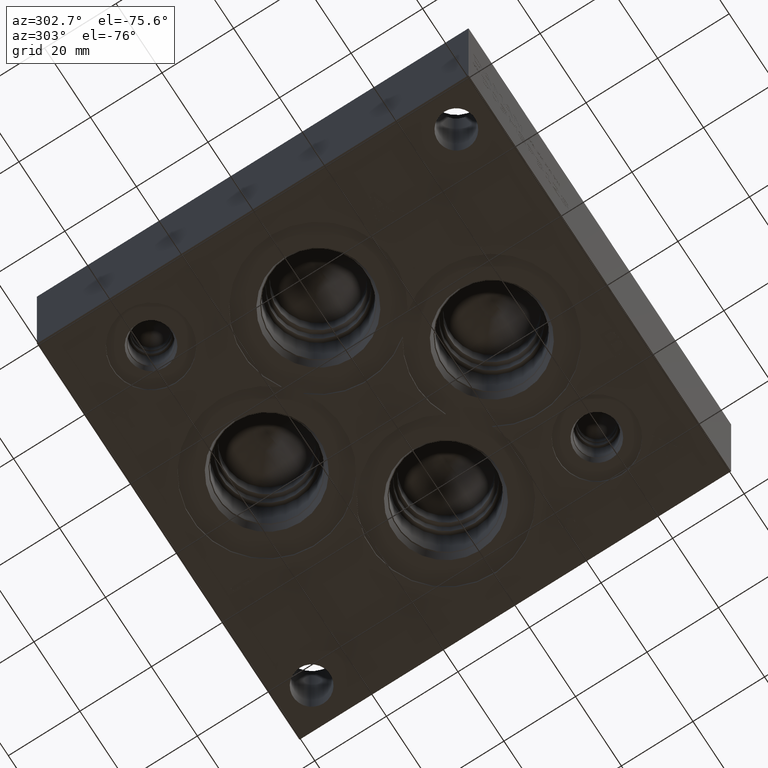
[diagram: clean part render]
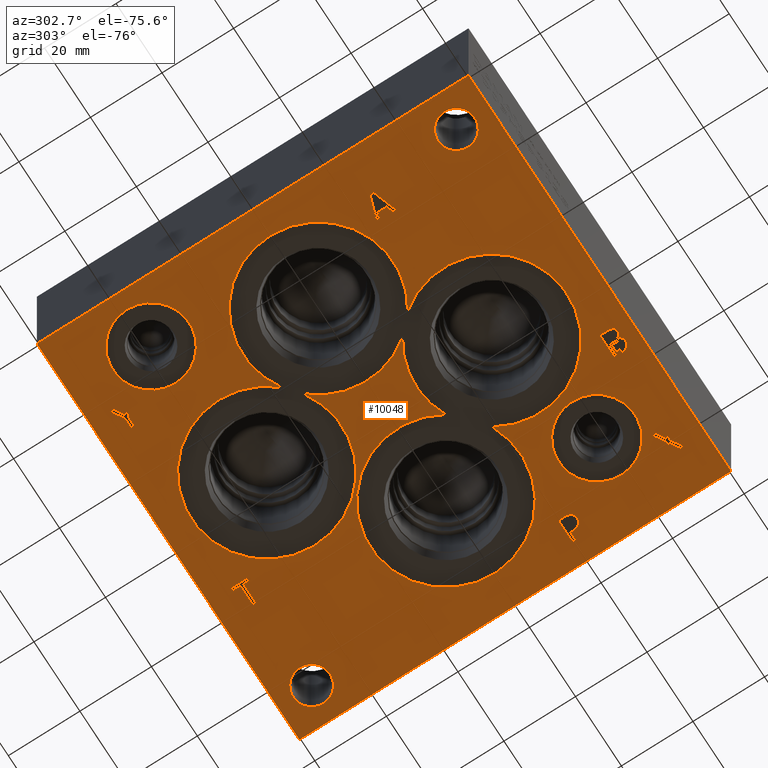
[diagram: same view with one face highlighted and labeled with its STEP entity id]
A machine part, auxiliary view. The second image highlights one B-rep face of the part: STEP entity #10048.
In plain terms, the highlighted planar face has unit normal (0, 0, 1).
Its self-contained STEP definition (entity closure, byte-faithful):
#96=CIRCLE('',#10585,10.6426);
#97=CIRCLE('',#10586,10.6426);
#98=CIRCLE('',#10587,10.6426);
#99=CIRCLE('',#10588,10.6426);
#100=CIRCLE('',#10589,5.1562);
#101=CIRCLE('',#10590,5.1562);
#102=CIRCLE('',#10591,21.0185);
#103=CIRCLE('',#10592,21.0185);
#104=CIRCLE('',#10593,21.0185);
#105=CIRCLE('',#10594,21.0185);
#106=CIRCLE('',#10595,21.0185);
#107=CIRCLE('',#10596,21.0185);
#268=FACE_BOUND('',#1322,.T.);
#269=FACE_BOUND('',#1323,.T.);
#270=FACE_BOUND('',#1324,.T.);
#271=FACE_BOUND('',#1325,.T.);
#272=FACE_BOUND('',#1326,.T.);
#273=FACE_BOUND('',#1327,.T.);
#274=FACE_BOUND('',#1328,.T.);
#275=FACE_BOUND('',#1329,.T.);
#276=FACE_BOUND('',#1330,.T.);
#277=FACE_BOUND('',#1331,.T.);
#278=FACE_BOUND('',#1332,.T.);
#355=B_SPLINE_CURVE_WITH_KNOTS('',2,(#13671,#13672,#13673,#13674),
 .UNSPECIFIED.,.F.,.F.,(3,1,3),(0.,1.,2.),.UNSPECIFIED.);
#357=B_SPLINE_CURVE_WITH_KNOTS('',2,(#13698,#13699,#13700,#13701),
 .UNSPECIFIED.,.F.,.F.,(3,1,3),(0.,1.,2.),.UNSPECIFIED.);
#359=B_SPLINE_CURVE_WITH_KNOTS('',2,(#13717,#13718,#13719,#13720),
 .UNSPECIFIED.,.F.,.F.,(3,1,3),(0.,1.,2.),.UNSPECIFIED.);
#361=B_SPLINE_CURVE_WITH_KNOTS('',2,(#13736,#13737,#13738,#13739),
 .UNSPECIFIED.,.F.,.F.,(3,1,3),(0.,1.,2.),.UNSPECIFIED.);
#363=B_SPLINE_CURVE_WITH_KNOTS('',2,(#13773,#13774,#13775,#13776),
 .UNSPECIFIED.,.F.,.F.,(3,1,3),(0.,1.,2.),.UNSPECIFIED.);
#365=B_SPLINE_CURVE_WITH_KNOTS('',2,(#13791,#13792,#13793,#13794),
 .UNSPECIFIED.,.F.,.F.,(3,1,3),(0.,1.,2.),.UNSPECIFIED.);
#367=B_SPLINE_CURVE_WITH_KNOTS('',2,(#13851,#13852,#13853,#13854),
 .UNSPECIFIED.,.F.,.F.,(3,1,3),(0.,1.,2.),.UNSPECIFIED.);
#368=B_SPLINE_CURVE_WITH_KNOTS('',2,(#13856,#13857,#13858,#13859),
 .UNSPECIFIED.,.F.,.F.,(3,1,3),(0.,1.,2.),.UNSPECIFIED.);
#369=B_SPLINE_CURVE_WITH_KNOTS('',2,(#13861,#13862,#13863,#13864),
 .UNSPECIFIED.,.F.,.F.,(3,1,3),(0.,1.,2.),.UNSPECIFIED.);
#370=B_SPLINE_CURVE_WITH_KNOTS('',2,(#13875,#13876,#13877,#13878),
 .UNSPECIFIED.,.F.,.F.,(3,1,3),(0.,1.,2.),.UNSPECIFIED.);
#783=FACE_OUTER_BOUND('',#1321,.T.);
#1321=EDGE_LOOP('',(#6611,#6612,#6613,#6614));
#1322=EDGE_LOOP('',(#6615,#6616,#6617,#6618,#6619,#6620,#6621,#6622,#6623,
#6624,#6625,#6626));
#1323=EDGE_LOOP('',(#6627,#6628,#6629,#6630,#6631,#6632,#6633,#6634,#6635));
#1324=EDGE_LOOP('',(#6636,#6637,#6638,#6639,#6640,#6641,#6642,#6643));
#1325=EDGE_LOOP('',(#6644,#6645,#6646,#6647,#6648,#6649,#6650,#6651,#6652,
#6653));
#1326=EDGE_LOOP('',(#6654,#6655,#6656,#6657,#6658,#6659,#6660,#6661));
#1327=EDGE_LOOP('',(#6662,#6663));
#1328=EDGE_LOOP('',(#6664,#6665));
#1329=EDGE_LOOP('',(#6666));
#1330=EDGE_LOOP('',(#6667));
#1331=EDGE_LOOP('',(#6668,#6669,#6670,#6671,#6672,#6673));
#1332=EDGE_LOOP('',(#6674,#6675,#6676,#6677,#6678,#6679,#6680,#6681,#6682));
#1871=LINE('',#13299,#2892);
#1875=LINE('',#13307,#2896);
#1878=LINE('',#13313,#2899);
#1881=LINE('',#13319,#2902);
#1884=LINE('',#13325,#2905);
#1887=LINE('',#13331,#2908);
#1890=LINE('',#13337,#2911);
#1893=LINE('',#13343,#2914);
#1896=LINE('',#13349,#2917);
#1899=LINE('',#13355,#2920);
#1902=LINE('',#13361,#2923);
#1905=LINE('',#13366,#2926);
#1907=LINE('',#13372,#2928);
#1911=LINE('',#13380,#2932);
#1914=LINE('',#13386,#2935);
#1917=LINE('',#13392,#2938);
#1920=LINE('',#13398,#2941);
#1923=LINE('',#13404,#2944);
#1926=LINE('',#13410,#2947);
#1929=LINE('',#13416,#2950);
#1932=LINE('',#13421,#2953);
#1934=LINE('',#13427,#2955);
#1938=LINE('',#13435,#2959);
#1941=LINE('',#13441,#2962);
#1944=LINE('',#13447,#2965);
#1947=LINE('',#13453,#2968);
#1950=LINE('',#13459,#2971);
#1953=LINE('',#13465,#2974);
#1956=LINE('',#13470,#2977);
#1986=LINE('',#13685,#3007);
#1992=LINE('',#13748,#3013);
#1995=LINE('',#13754,#3016);
#1998=LINE('',#13760,#3019);
#2002=LINE('',#13803,#3023);
#2003=LINE('',#13805,#3024);
#2004=LINE('',#13807,#3025);
#2005=LINE('',#13808,#3026);
#2006=LINE('',#13811,#3027);
#2007=LINE('',#13813,#3028);
#2008=LINE('',#13815,#3029);
#2009=LINE('',#13817,#3030);
#2010=LINE('',#13819,#3031);
#2011=LINE('',#13821,#3032);
#2012=LINE('',#13823,#3033);
#2013=LINE('',#13824,#3034);
#2014=LINE('',#13866,#3035);
#2015=LINE('',#13868,#3036);
#2016=LINE('',#13870,#3037);
#2017=LINE('',#13872,#3038);
#2018=LINE('',#13874,#3039);
#2892=VECTOR('',#11122,10.);
#2896=VECTOR('',#11128,10.);
#2899=VECTOR('',#11133,10.);
#2902=VECTOR('',#11138,10.);
#2905=VECTOR('',#11143,10.);
#2908=VECTOR('',#11148,10.);
#2911=VECTOR('',#11153,10.);
#2914=VECTOR('',#11158,10.);
#2917=VECTOR('',#11163,10.);
#2920=VECTOR('',#11168,10.);
#2923=VECTOR('',#11173,10.);
#2926=VECTOR('',#11178,10.);
#2928=VECTOR('',#11184,10.);
#2932=VECTOR('',#11190,10.);
#2935=VECTOR('',#11195,10.);
#2938=VECTOR('',#11200,10.);
#2941=VECTOR('',#11205,10.);
#2944=VECTOR('',#11210,10.);
#2947=VECTOR('',#11215,10.);
#2950=VECTOR('',#11220,10.);
#2953=VECTOR('',#11225,10.);
#2955=VECTOR('',#11231,10.);
#2959=VECTOR('',#11237,10.);
#2962=VECTOR('',#11242,10.);
#2965=VECTOR('',#11247,10.);
#2968=VECTOR('',#11252,10.);
#2971=VECTOR('',#11257,10.);
#2974=VECTOR('',#11262,10.);
#2977=VECTOR('',#11267,10.);
#3007=VECTOR('',#11313,10.);
#3013=VECTOR('',#11321,10.);
#3016=VECTOR('',#11326,10.);
#3019=VECTOR('',#11331,10.);
#3023=VECTOR('',#11339,10.);
#3024=VECTOR('',#11340,10.);
#3025=VECTOR('',#11341,10.);
#3026=VECTOR('',#11342,10.);
#3027=VECTOR('',#11343,10.);
#3028=VECTOR('',#11344,10.);
#3029=VECTOR('',#11345,10.);
#3030=VECTOR('',#11346,10.);
#3031=VECTOR('',#11347,10.);
#3032=VECTOR('',#11348,10.);
#3033=VECTOR('',#11349,10.);
#3034=VECTOR('',#11350,10.);
#3035=VECTOR('',#11375,10.);
#3036=VECTOR('',#11376,10.);
#3037=VECTOR('',#11377,10.);
#3038=VECTOR('',#11378,10.);
#3039=VECTOR('',#11379,10.);
#3913=VERTEX_POINT('',#13297);
#3914=VERTEX_POINT('',#13298);
#3917=VERTEX_POINT('',#13306);
#3919=VERTEX_POINT('',#13312);
#3921=VERTEX_POINT('',#13318);
#3923=VERTEX_POINT('',#13324);
#3925=VERTEX_POINT('',#13330);
#3927=VERTEX_POINT('',#13336);
#3929=VERTEX_POINT('',#13342);
#3931=VERTEX_POINT('',#13348);
#3933=VERTEX_POINT('',#13354);
#3935=VERTEX_POINT('',#13360);
#3937=VERTEX_POINT('',#13370);
#3938=VERTEX_POINT('',#13371);
#3941=VERTEX_POINT('',#13379);
#3943=VERTEX_POINT('',#13385);
#3945=VERTEX_POINT('',#13391);
#3947=VERTEX_POINT('',#13397);
#3949=VERTEX_POINT('',#13403);
#3951=VERTEX_POINT('',#13409);
#3953=VERTEX_POINT('',#13415);
#3955=VERTEX_POINT('',#13425);
#3956=VERTEX_POINT('',#13426);
#3959=VERTEX_POINT('',#13434);
#3961=VERTEX_POINT('',#13440);
#3963=VERTEX_POINT('',#13446);
#3965=VERTEX_POINT('',#13452);
#3967=VERTEX_POINT('',#13458);
#3969=VERTEX_POINT('',#13464);
#3999=VERTEX_POINT('',#13669);
#4000=VERTEX_POINT('',#13670);
#4003=VERTEX_POINT('',#13684);
#4005=VERTEX_POINT('',#13697);
#4007=VERTEX_POINT('',#13716);
#4009=VERTEX_POINT('',#13735);
#4011=VERTEX_POINT('',#13747);
#4013=VERTEX_POINT('',#13753);
#4015=VERTEX_POINT('',#13759);
#4017=VERTEX_POINT('',#13772);
#4019=VERTEX_POINT('',#13801);
#4020=VERTEX_POINT('',#13802);
#4021=VERTEX_POINT('',#13804);
#4022=VERTEX_POINT('',#13806);
#4023=VERTEX_POINT('',#13809);
#4024=VERTEX_POINT('',#13810);
#4025=VERTEX_POINT('',#13812);
#4026=VERTEX_POINT('',#13814);
#4027=VERTEX_POINT('',#13816);
#4028=VERTEX_POINT('',#13818);
#4029=VERTEX_POINT('',#13820);
#4030=VERTEX_POINT('',#13822);
#4031=VERTEX_POINT('',#13825);
#4032=VERTEX_POINT('',#13826);
#4033=VERTEX_POINT('',#13829);
#4034=VERTEX_POINT('',#13830);
#4035=VERTEX_POINT('',#13833);
#4036=VERTEX_POINT('',#13835);
#4037=VERTEX_POINT('',#13837);
#4038=VERTEX_POINT('',#13838);
#4039=VERTEX_POINT('',#13840);
#4040=VERTEX_POINT('',#13842);
#4041=VERTEX_POINT('',#13844);
#4042=VERTEX_POINT('',#13846);
#4043=VERTEX_POINT('',#13849);
#4044=VERTEX_POINT('',#13850);
#4045=VERTEX_POINT('',#13855);
#4046=VERTEX_POINT('',#13860);
#4047=VERTEX_POINT('',#13865);
#4048=VERTEX_POINT('',#13867);
#4049=VERTEX_POINT('',#13869);
#4050=VERTEX_POINT('',#13871);
#4051=VERTEX_POINT('',#13873);
#4897=EDGE_CURVE('',#3913,#3914,#1871,.T.);
#4901=EDGE_CURVE('',#3917,#3913,#1875,.T.);
#4904=EDGE_CURVE('',#3919,#3917,#1878,.T.);
#4907=EDGE_CURVE('',#3921,#3919,#1881,.T.);
#4910=EDGE_CURVE('',#3923,#3921,#1884,.T.);
#4913=EDGE_CURVE('',#3925,#3923,#1887,.T.);
#4916=EDGE_CURVE('',#3927,#3925,#1890,.T.);
#4919=EDGE_CURVE('',#3929,#3927,#1893,.T.);
#4922=EDGE_CURVE('',#3931,#3929,#1896,.T.);
#4925=EDGE_CURVE('',#3933,#3931,#1899,.T.);
#4928=EDGE_CURVE('',#3935,#3933,#1902,.T.);
#4931=EDGE_CURVE('',#3914,#3935,#1905,.T.);
#4933=EDGE_CURVE('',#3937,#3938,#1907,.T.);
#4937=EDGE_CURVE('',#3941,#3937,#1911,.T.);
#4940=EDGE_CURVE('',#3943,#3941,#1914,.T.);
#4943=EDGE_CURVE('',#3945,#3943,#1917,.T.);
#4946=EDGE_CURVE('',#3947,#3945,#1920,.T.);
#4949=EDGE_CURVE('',#3949,#3947,#1923,.T.);
#4952=EDGE_CURVE('',#3951,#3949,#1926,.T.);
#4955=EDGE_CURVE('',#3953,#3951,#1929,.T.);
#4958=EDGE_CURVE('',#3938,#3953,#1932,.T.);
#4960=EDGE_CURVE('',#3955,#3956,#1934,.T.);
#4964=EDGE_CURVE('',#3959,#3955,#1938,.T.);
#4967=EDGE_CURVE('',#3961,#3959,#1941,.T.);
#4970=EDGE_CURVE('',#3963,#3961,#1944,.T.);
#4973=EDGE_CURVE('',#3965,#3963,#1947,.T.);
#4976=EDGE_CURVE('',#3967,#3965,#1950,.T.);
#4979=EDGE_CURVE('',#3969,#3967,#1953,.T.);
#4982=EDGE_CURVE('',#3956,#3969,#1956,.T.);
#5026=EDGE_CURVE('',#3999,#4000,#355,.T.);
#5030=EDGE_CURVE('',#4003,#3999,#1986,.T.);
#5033=EDGE_CURVE('',#4005,#4003,#357,.T.);
#5036=EDGE_CURVE('',#4007,#4005,#359,.T.);
#5039=EDGE_CURVE('',#4009,#4007,#361,.T.);
#5042=EDGE_CURVE('',#4011,#4009,#1992,.T.);
#5045=EDGE_CURVE('',#4013,#4011,#1995,.T.);
#5048=EDGE_CURVE('',#4015,#4013,#1998,.T.);
#5051=EDGE_CURVE('',#4017,#4015,#363,.T.);
#5054=EDGE_CURVE('',#4000,#4017,#365,.T.);
#5056=EDGE_CURVE('',#4019,#4020,#2002,.T.);
#5057=EDGE_CURVE('',#4021,#4019,#2003,.T.);
#5058=EDGE_CURVE('',#4022,#4021,#2004,.T.);
#5059=EDGE_CURVE('',#4020,#4022,#2005,.T.);
#5060=EDGE_CURVE('',#4023,#4024,#2006,.T.);
#5061=EDGE_CURVE('',#4024,#4025,#2007,.T.);
#5062=EDGE_CURVE('',#4025,#4026,#2008,.T.);
#5063=EDGE_CURVE('',#4026,#4027,#2009,.T.);
#5064=EDGE_CURVE('',#4027,#4028,#2010,.T.);
#5065=EDGE_CURVE('',#4028,#4029,#2011,.T.);
#5066=EDGE_CURVE('',#4029,#4030,#2012,.T.);
#5067=EDGE_CURVE('',#4030,#4023,#2013,.T.);
#5068=EDGE_CURVE('',#4031,#4032,#96,.T.);
#5069=EDGE_CURVE('',#4032,#4031,#97,.T.);
#5070=EDGE_CURVE('',#4033,#4034,#98,.T.);
#5071=EDGE_CURVE('',#4034,#4033,#99,.T.);
#5072=EDGE_CURVE('',#4035,#4035,#100,.T.);
#5073=EDGE_CURVE('',#4036,#4036,#101,.T.);
#5074=EDGE_CURVE('',#4037,#4038,#102,.T.);
#5075=EDGE_CURVE('',#4038,#4039,#103,.T.);
#5076=EDGE_CURVE('',#4039,#4040,#104,.T.);
#5077=EDGE_CURVE('',#4040,#4041,#105,.T.);
#5078=EDGE_CURVE('',#4041,#4042,#106,.T.);
#5079=EDGE_CURVE('',#4042,#4037,#107,.T.);
#5080=EDGE_CURVE('',#4043,#4044,#367,.T.);
#5081=EDGE_CURVE('',#4044,#4045,#368,.T.);
#5082=EDGE_CURVE('',#4045,#4046,#369,.T.);
#5083=EDGE_CURVE('',#4046,#4047,#2014,.T.);
#5084=EDGE_CURVE('',#4047,#4048,#2015,.T.);
#5085=EDGE_CURVE('',#4048,#4049,#2016,.T.);
#5086=EDGE_CURVE('',#4049,#4050,#2017,.T.);
#5087=EDGE_CURVE('',#4050,#4051,#2018,.T.);
#5088=EDGE_CURVE('',#4051,#4043,#370,.T.);
#6611=ORIENTED_EDGE('',*,*,#5056,.F.);
#6612=ORIENTED_EDGE('',*,*,#5057,.F.);
#6613=ORIENTED_EDGE('',*,*,#5058,.F.);
#6614=ORIENTED_EDGE('',*,*,#5059,.F.);
#6615=ORIENTED_EDGE('',*,*,#4897,.T.);
#6616=ORIENTED_EDGE('',*,*,#4931,.T.);
#6617=ORIENTED_EDGE('',*,*,#4928,.T.);
#6618=ORIENTED_EDGE('',*,*,#4925,.T.);
#6619=ORIENTED_EDGE('',*,*,#4922,.T.);
#6620=ORIENTED_EDGE('',*,*,#4919,.T.);
#6621=ORIENTED_EDGE('',*,*,#4916,.T.);
#6622=ORIENTED_EDGE('',*,*,#4913,.T.);
#6623=ORIENTED_EDGE('',*,*,#4910,.T.);
#6624=ORIENTED_EDGE('',*,*,#4907,.T.);
#6625=ORIENTED_EDGE('',*,*,#4904,.T.);
#6626=ORIENTED_EDGE('',*,*,#4901,.T.);
#6627=ORIENTED_EDGE('',*,*,#4933,.T.);
#6628=ORIENTED_EDGE('',*,*,#4958,.T.);
#6629=ORIENTED_EDGE('',*,*,#4955,.T.);
#6630=ORIENTED_EDGE('',*,*,#4952,.T.);
#6631=ORIENTED_EDGE('',*,*,#4949,.T.);
#6632=ORIENTED_EDGE('',*,*,#4946,.T.);
#6633=ORIENTED_EDGE('',*,*,#4943,.T.);
#6634=ORIENTED_EDGE('',*,*,#4940,.T.);
#6635=ORIENTED_EDGE('',*,*,#4937,.T.);
#6636=ORIENTED_EDGE('',*,*,#4960,.T.);
#6637=ORIENTED_EDGE('',*,*,#4982,.T.);
#6638=ORIENTED_EDGE('',*,*,#4979,.T.);
#6639=ORIENTED_EDGE('',*,*,#4976,.T.);
#6640=ORIENTED_EDGE('',*,*,#4973,.T.);
#6641=ORIENTED_EDGE('',*,*,#4970,.T.);
#6642=ORIENTED_EDGE('',*,*,#4967,.T.);
#6643=ORIENTED_EDGE('',*,*,#4964,.T.);
#6644=ORIENTED_EDGE('',*,*,#5026,.T.);
#6645=ORIENTED_EDGE('',*,*,#5054,.T.);
#6646=ORIENTED_EDGE('',*,*,#5051,.T.);
#6647=ORIENTED_EDGE('',*,*,#5048,.T.);
#6648=ORIENTED_EDGE('',*,*,#5045,.T.);
#6649=ORIENTED_EDGE('',*,*,#5042,.T.);
#6650=ORIENTED_EDGE('',*,*,#5039,.T.);
#6651=ORIENTED_EDGE('',*,*,#5036,.T.);
#6652=ORIENTED_EDGE('',*,*,#5033,.T.);
#6653=ORIENTED_EDGE('',*,*,#5030,.T.);
#6654=ORIENTED_EDGE('',*,*,#5060,.T.);
#6655=ORIENTED_EDGE('',*,*,#5061,.T.);
#6656=ORIENTED_EDGE('',*,*,#5062,.T.);
#6657=ORIENTED_EDGE('',*,*,#5063,.T.);
#6658=ORIENTED_EDGE('',*,*,#5064,.T.);
#6659=ORIENTED_EDGE('',*,*,#5065,.T.);
#6660=ORIENTED_EDGE('',*,*,#5066,.T.);
#6661=ORIENTED_EDGE('',*,*,#5067,.T.);
#6662=ORIENTED_EDGE('',*,*,#5068,.T.);
#6663=ORIENTED_EDGE('',*,*,#5069,.T.);
#6664=ORIENTED_EDGE('',*,*,#5070,.T.);
#6665=ORIENTED_EDGE('',*,*,#5071,.T.);
#6666=ORIENTED_EDGE('',*,*,#5072,.T.);
#6667=ORIENTED_EDGE('',*,*,#5073,.T.);
#6668=ORIENTED_EDGE('',*,*,#5074,.T.);
#6669=ORIENTED_EDGE('',*,*,#5075,.T.);
#6670=ORIENTED_EDGE('',*,*,#5076,.T.);
#6671=ORIENTED_EDGE('',*,*,#5077,.T.);
#6672=ORIENTED_EDGE('',*,*,#5078,.T.);
#6673=ORIENTED_EDGE('',*,*,#5079,.T.);
#6674=ORIENTED_EDGE('',*,*,#5080,.T.);
#6675=ORIENTED_EDGE('',*,*,#5081,.T.);
#6676=ORIENTED_EDGE('',*,*,#5082,.T.);
#6677=ORIENTED_EDGE('',*,*,#5083,.T.);
#6678=ORIENTED_EDGE('',*,*,#5084,.T.);
#6679=ORIENTED_EDGE('',*,*,#5085,.T.);
#6680=ORIENTED_EDGE('',*,*,#5086,.T.);
#6681=ORIENTED_EDGE('',*,*,#5087,.T.);
#6682=ORIENTED_EDGE('',*,*,#5088,.T.);
#9287=PLANE('',#10584);
#10048=ADVANCED_FACE('',(#783,#268,#269,#270,#271,#272,#273,#274,#275,#276,
#277,#278),#9287,.F.);
#10584=AXIS2_PLACEMENT_3D('',#13800,#11337,#11338);
#10585=AXIS2_PLACEMENT_3D('',#13827,#11351,#11352);
#10586=AXIS2_PLACEMENT_3D('',#13828,#11353,#11354);
#10587=AXIS2_PLACEMENT_3D('',#13831,#11355,#11356);
#10588=AXIS2_PLACEMENT_3D('',#13832,#11357,#11358);
#10589=AXIS2_PLACEMENT_3D('',#13834,#11359,#11360);
#10590=AXIS2_PLACEMENT_3D('',#13836,#11361,#11362);
#10591=AXIS2_PLACEMENT_3D('',#13839,#11363,#11364);
#10592=AXIS2_PLACEMENT_3D('',#13841,#11365,#11366);
#10593=AXIS2_PLACEMENT_3D('',#13843,#11367,#11368);
#10594=AXIS2_PLACEMENT_3D('',#13845,#11369,#11370);
#10595=AXIS2_PLACEMENT_3D('',#13847,#11371,#11372);
#10596=AXIS2_PLACEMENT_3D('',#13848,#11373,#11374);
#11122=DIRECTION('',(0.851191118645099,-0.524855865490427,0.));
#11128=DIRECTION('',(0.844232761378654,0.535976720217374,0.));
#11133=DIRECTION('',(0.,-1.,0.));
#11138=DIRECTION('',(-0.849477082513831,-0.527625517089337,0.));
#11143=DIRECTION('',(0.854198555614442,-0.51994694689574,0.));
#11148=DIRECTION('',(0.,-1.,0.));
#11153=DIRECTION('',(-0.850471045146921,0.526021863962615,0.));
#11158=DIRECTION('',(-0.843830115736992,-0.536610413405568,0.));
#11163=DIRECTION('',(0.,1.,0.));
#11168=DIRECTION('',(0.849159811848735,0.528135980540069,0.));
#11173=DIRECTION('',(-0.853796175794036,0.520607424264656,0.));
#11178=DIRECTION('',(0.,1.,0.));
#11184=DIRECTION('',(4.9597800089167E-15,-1.,0.));
#11190=DIRECTION('',(-0.858746256029892,-0.512401080946015,0.));
#11195=DIRECTION('',(0.862913061259439,-0.505352400516574,0.));
#11200=DIRECTION('',(4.74176770083241E-15,-1.,0.));
#11205=DIRECTION('',(-0.860707703064185,0.509099449897537,0.));
#11210=DIRECTION('',(-1.,0.,0.));
#11215=DIRECTION('',(-5.26220561921649E-15,1.,0.));
#11220=DIRECTION('',(1.,0.,0.));
#11225=DIRECTION('',(0.855181135397278,0.518329263750969,0.));
#11231=DIRECTION('',(0.,1.,0.));
#11237=DIRECTION('',(1.,0.,0.));
#11242=DIRECTION('',(0.,1.,0.));
#11247=DIRECTION('',(1.,0.,0.));
#11252=DIRECTION('',(1.73992282570867E-15,-1.,0.));
#11257=DIRECTION('',(-1.,0.,0.));
#11262=DIRECTION('',(0.,1.,0.));
#11267=DIRECTION('',(-1.,0.,0.));
#11313=DIRECTION('',(1.,0.,0.));
#11321=DIRECTION('',(0.,-1.,0.));
#11326=DIRECTION('',(-1.,-2.79741238752512E-15,0.));
#11331=DIRECTION('',(0.,1.,0.));
#11337=DIRECTION('center_axis',(0.,0.,1.));
#11338=DIRECTION('ref_axis',(1.,0.,0.));
#11339=DIRECTION('',(1.,0.,0.));
#11340=DIRECTION('',(0.,-1.,0.));
#11341=DIRECTION('',(-1.,0.,0.));
#11342=DIRECTION('',(0.,1.,0.));
#11343=DIRECTION('',(0.,1.,0.));
#11344=DIRECTION('',(-0.94760273960677,-0.31945116667457,0.));
#11345=DIRECTION('',(0.,-1.,0.));
#11346=DIRECTION('',(0.947602739606771,-0.319451166674566,0.));
#11347=DIRECTION('',(0.,1.,0.));
#11348=DIRECTION('',(-0.951135317488763,0.308774363938379,0.));
#11349=DIRECTION('',(0.,1.,0.));
#11350=DIRECTION('',(0.951135317488762,0.308774363938381,0.));
#11351=DIRECTION('center_axis',(0.,0.,1.));
#11352=DIRECTION('ref_axis',(1.,0.,0.));
#11353=DIRECTION('center_axis',(0.,0.,1.));
#11354=DIRECTION('ref_axis',(1.,0.,0.));
#11355=DIRECTION('center_axis',(0.,0.,1.));
#11356=DIRECTION('ref_axis',(1.,0.,0.));
#11357=DIRECTION('center_axis',(0.,0.,1.));
#11358=DIRECTION('ref_axis',(1.,0.,0.));
#11359=DIRECTION('center_axis',(0.,0.,1.));
#11360=DIRECTION('ref_axis',(1.,0.,0.));
#11361=DIRECTION('center_axis',(0.,0.,1.));
#11362=DIRECTION('ref_axis',(1.,0.,0.));
#11363=DIRECTION('center_axis',(0.,0.,1.));
#11364=DIRECTION('ref_axis',(1.,0.,0.));
#11365=DIRECTION('center_axis',(0.,0.,1.));
#11366=DIRECTION('ref_axis',(1.,0.,0.));
#11367=DIRECTION('center_axis',(0.,0.,1.));
#11368=DIRECTION('ref_axis',(1.,0.,0.));
#11369=DIRECTION('center_axis',(0.,0.,1.));
#11370=DIRECTION('ref_axis',(1.,0.,0.));
#11371=DIRECTION('center_axis',(0.,0.,1.));
#11372=DIRECTION('ref_axis',(1.,0.,0.));
#11373=DIRECTION('center_axis',(0.,0.,1.));
#11374=DIRECTION('ref_axis',(1.,0.,0.));
#11375=DIRECTION('',(0.,1.,0.));
#11376=DIRECTION('',(1.,0.,0.));
#11377=DIRECTION('',(0.,1.,0.));
#11378=DIRECTION('',(-1.,-2.79741238752512E-15,0.));
#11379=DIRECTION('',(0.,-1.,0.));
#13297=CARTESIAN_POINT('',(99.9534872444895,8.05344672322327,0.));
#13298=CARTESIAN_POINT('',(103.1748,6.06714205289251,0.));
#13299=CARTESIAN_POINT('',(72.7711331801187,24.8144509865573,0.));
#13306=CARTESIAN_POINT('',(96.8248000953675,6.06714205289249,0.));
#13307=CARTESIAN_POINT('',(94.9616555145602,4.88429039468257,0.));
#13312=CARTESIAN_POINT('',(96.8248000953675,6.97796051571256,0.));
#13313=CARTESIAN_POINT('',(96.8248000953675,33.6514802578563,0.));
#13318=CARTESIAN_POINT('',(99.3102538667917,8.52172062218726,0.));
#13319=CARTESIAN_POINT('',(95.7078605244805,6.28420922944737,0.));
#13324=CARTESIAN_POINT('',(96.8248000953675,10.0346055265324,0.));
#13325=CARTESIAN_POINT('',(71.1824026671564,25.6430213523998,0.));
#13330=CARTESIAN_POINT('',(96.8248000953675,11.0020285265899,0.));
#13331=CARTESIAN_POINT('',(96.8248000953675,35.663514263295,0.));
#13336=CARTESIAN_POINT('',(99.9946541806622,9.04145319136708,0.));
#13337=CARTESIAN_POINT('',(73.0285966581493,25.7201348733107,0.));
#13342=CARTESIAN_POINT('',(103.1748,11.0637789308489,0.));
#13343=CARTESIAN_POINT('',(97.9417756780721,7.73598191059377,0.));
#13348=CARTESIAN_POINT('',(103.1748,10.1529604680289,0.));
#13349=CARTESIAN_POINT('',(103.1748,35.2389802340144,0.));
#13354=CARTESIAN_POINT('',(100.643033425382,8.57832515942468,0.));
#13355=CARTESIAN_POINT('',(96.5656842259725,6.04241285247514,0.));
#13360=CARTESIAN_POINT('',(103.1748,7.03456505294998,0.));
#13361=CARTESIAN_POINT('',(74.5558961360091,24.4851161895298,0.));
#13366=CARTESIAN_POINT('',(103.1748,33.1960710264463,0.));
#13370=CARTESIAN_POINT('',(23.0187500953674,110.89986837741,0.));
#13371=CARTESIAN_POINT('',(23.0187500953675,110.004487515655,0.));
#13372=CARTESIAN_POINT('',(23.0187500953676,85.6124341887051,0.));
#13379=CARTESIAN_POINT('',(25.8129558880866,112.567129292403,0.));
#13380=CARTESIAN_POINT('',(25.8737747822059,112.603419019281,0.));
#13385=CARTESIAN_POINT('',(23.0187500953674,114.203515005266,0.));
#13386=CARTESIAN_POINT('',(47.4736796021146,99.8818435814255,0.));
#13391=CARTESIAN_POINT('',(23.0187500953674,115.140062803194,0.));
#13392=CARTESIAN_POINT('',(23.0187500953676,87.732531401597,0.));
#13397=CARTESIAN_POINT('',(26.646586345583,112.994236255194,0.));
#13398=CARTESIAN_POINT('',(49.4847776726904,99.4856890446926,0.));
#13403=CARTESIAN_POINT('',(29.36875,112.994236255194,0.));
#13404=CARTESIAN_POINT('',(43.259375,112.994236255194,0.));
#13409=CARTESIAN_POINT('',(29.36875,112.150314063655,0.));
#13410=CARTESIAN_POINT('',(29.3687500000001,86.2376570318274,0.));
#13415=CARTESIAN_POINT('',(26.5591066062161,112.150314063655,0.));
#13416=CARTESIAN_POINT('',(41.854553303108,112.150314063655,0.));
#13421=CARTESIAN_POINT('',(24.4888359103421,110.89551336572,0.));
#13425=CARTESIAN_POINT('',(80.9752,111.330834728547,0.));
#13426=CARTESIAN_POINT('',(80.9752,112.174756920086,0.));
#13427=CARTESIAN_POINT('',(80.9752,85.8279173642735,0.));
#13434=CARTESIAN_POINT('',(75.3764966805185,111.330834728547,0.));
#13435=CARTESIAN_POINT('',(66.2632483402592,111.330834728547,0.));
#13440=CARTESIAN_POINT('',(75.3764966805185,109.200445781612,0.));
#13441=CARTESIAN_POINT('',(75.3764966805185,84.762722890806,0.));
#13446=CARTESIAN_POINT('',(74.6252000953675,109.200445781612,0.));
#13447=CARTESIAN_POINT('',(65.8876000476837,109.200445781612,0.));
#13452=CARTESIAN_POINT('',(74.6252000953674,114.305145867022,0.));
#13453=CARTESIAN_POINT('',(74.6252000953675,87.3150729335108,0.));
#13458=CARTESIAN_POINT('',(75.3764966805185,114.305145867022,0.));
#13459=CARTESIAN_POINT('',(66.2632483402592,114.305145867022,0.));
#13464=CARTESIAN_POINT('',(75.3764966805185,112.174756920086,0.));
#13465=CARTESIAN_POINT('',(75.3764966805185,86.2498784600432,0.));
#13470=CARTESIAN_POINT('',(69.0626,112.174756920086,0.));
#13669=CARTESIAN_POINT('',(72.6699352231946,4.96962120722332,0.));
#13670=CARTESIAN_POINT('',(74.2497163988203,3.78092592523782,0.));
#13671=CARTESIAN_POINT('Ctrl Pts',(72.6699352231946,4.96962120722332,0.));
#13672=CARTESIAN_POINT('Ctrl Pts',(72.824311233842,4.40357583484927,0.));
#13673=CARTESIAN_POINT('Ctrl Pts',(73.6425040902736,3.78092592523782,0.));
#13674=CARTESIAN_POINT('Ctrl Pts',(74.2497163988203,3.78092592523782,0.));
#13684=CARTESIAN_POINT('',(72.6390600210651,4.96962120722332,0.));
#13685=CARTESIAN_POINT('',(64.8945300105325,4.96962120722332,0.));
#13697=CARTESIAN_POINT('',(71.2805511273673,4.07938621248958,0.));
#13698=CARTESIAN_POINT('Ctrl Pts',(71.2805511273673,4.07938621248958,0.));
#13699=CARTESIAN_POINT('Ctrl Pts',(71.728241558245,4.07938621248958,0.));
#13700=CARTESIAN_POINT('Ctrl Pts',(72.4383712072234,4.55280597847516,0.));
#13701=CARTESIAN_POINT('Ctrl Pts',(72.6390600210651,4.96962120722332,0.));
#13716=CARTESIAN_POINT('',(70.1072934464466,4.73805719125211,0.));
#13717=CARTESIAN_POINT('Ctrl Pts',(70.1072934464466,4.73805719125211,0.));
#13718=CARTESIAN_POINT('Ctrl Pts',(70.287398792202,4.39328410080609,0.));
#13719=CARTESIAN_POINT('Ctrl Pts',(70.8791734996839,4.07938621248958,0.));
#13720=CARTESIAN_POINT('Ctrl Pts',(71.2805511273673,4.07938621248958,0.));
#13735=CARTESIAN_POINT('',(69.8500000953675,6.40531810624478,0.));
#13736=CARTESIAN_POINT('Ctrl Pts',(69.8500000953675,6.40531810624478,0.));
#13737=CARTESIAN_POINT('Ctrl Pts',(69.8500000953675,5.72606365939591,0.));
#13738=CARTESIAN_POINT('Ctrl Pts',(69.9374798347343,5.04680921254705,0.));
#13739=CARTESIAN_POINT('Ctrl Pts',(70.1072934464466,4.73805719125211,0.));
#13747=CARTESIAN_POINT('',(69.8500000953675,8.08801662230219,0.));
#13748=CARTESIAN_POINT('',(69.8500000953675,34.2065083111511,0.));
#13753=CARTESIAN_POINT('',(76.2,8.08801662230221,0.));
#13754=CARTESIAN_POINT('',(66.6750000000001,8.08801662230218,0.));
#13759=CARTESIAN_POINT('',(76.2,6.26637969666207,0.));
#13760=CARTESIAN_POINT('',(76.2,33.295689848331,0.));
#13772=CARTESIAN_POINT('',(75.6854132978418,4.43959690400035,0.));
#13773=CARTESIAN_POINT('Ctrl Pts',(75.6854132978418,4.43959690400035,0.));
#13774=CARTESIAN_POINT('Ctrl Pts',(75.9632901170072,4.79980759551111,0.));
#13775=CARTESIAN_POINT('Ctrl Pts',(76.2,5.6180004519427,0.));
#13776=CARTESIAN_POINT('Ctrl Pts',(76.2,6.26637969666207,0.));
#13791=CARTESIAN_POINT('Ctrl Pts',(74.2497163988203,3.78092592523782,0.));
#13792=CARTESIAN_POINT('Ctrl Pts',(74.7231361648059,3.78092592523782,0.));
#13793=CARTESIAN_POINT('Ctrl Pts',(75.448703414849,4.14113661674858,0.));
#13794=CARTESIAN_POINT('Ctrl Pts',(75.6854132978418,4.43959690400035,0.));
#13800=CARTESIAN_POINT('Origin',(57.15,60.325,0.));
#13801=CARTESIAN_POINT('',(0.,0.,0.));
#13802=CARTESIAN_POINT('',(114.3,0.,0.));
#13803=CARTESIAN_POINT('',(0.,0.,0.));
#13804=CARTESIAN_POINT('',(0.,120.65,0.));
#13805=CARTESIAN_POINT('',(0.,120.65,0.));
#13806=CARTESIAN_POINT('',(114.3,120.65,0.));
#13807=CARTESIAN_POINT('',(114.3,120.65,0.));
#13808=CARTESIAN_POINT('',(114.3,0.,0.));
#13809=CARTESIAN_POINT('',(18.25625,36.49320301059,0.));
#13810=CARTESIAN_POINT('',(18.25625,37.3474169361727,0.));
#13811=CARTESIAN_POINT('',(18.25625,48.409101505295,0.));
#13812=CARTESIAN_POINT('',(11.9062500953674,35.2067362551944,0.));
#13813=CARTESIAN_POINT('',(39.1963941832342,44.4066551697427,0.));
#13814=CARTESIAN_POINT('',(11.9062500953674,34.1672711168348,0.));
#13815=CARTESIAN_POINT('',(11.9062500953674,47.7658681275972,0.));
#13816=CARTESIAN_POINT('',(18.25625,32.0265904358566,0.));
#13817=CARTESIAN_POINT('',(28.2604445620829,28.6540256564186,0.));
#13818=CARTESIAN_POINT('',(18.25625,32.9168254305903,0.));
#13819=CARTESIAN_POINT('',(18.25625,46.1757952179283,0.));
#13820=CARTESIAN_POINT('',(16.4809258775541,33.4931625370075,0.));
#13821=CARTESIAN_POINT('',(31.8243273145195,28.512116273413,0.));
#13822=CARTESIAN_POINT('',(16.4809258775541,35.9168659041728,0.));
#13823=CARTESIAN_POINT('',(16.4809258775541,46.9090812685038,0.));
#13824=CARTESIAN_POINT('',(38.4609015894881,43.0523942512354,0.));
#13825=CARTESIAN_POINT('',(101.1174,22.225,0.));
#13826=CARTESIAN_POINT('',(79.8322,22.225,0.));
#13827=CARTESIAN_POINT('Origin',(90.4748,22.225,0.));
#13828=CARTESIAN_POINT('Origin',(90.4748,22.225,0.));
#13829=CARTESIAN_POINT('',(25.7302,98.425,0.));
#13830=CARTESIAN_POINT('',(4.445,98.425,0.));
#13831=CARTESIAN_POINT('Origin',(15.0876,98.425,0.));
#13832=CARTESIAN_POINT('Origin',(15.0876,98.425,0.));
#13833=CARTESIAN_POINT('',(99.6188,111.125,0.));
#13834=CARTESIAN_POINT('Origin',(104.775,111.125,0.));
#13835=CARTESIAN_POINT('',(4.3688,9.525,0.));
#13836=CARTESIAN_POINT('Origin',(9.525,9.525,0.));
#13837=CARTESIAN_POINT('',(44.1625986719857,74.4247911293434,0.));
#13838=CARTESIAN_POINT('',(39.9876013280143,77.9752088706566,0.));
#13839=CARTESIAN_POINT('Origin',(55.5752,92.075,0.));
#13840=CARTESIAN_POINT('',(40.5227312144065,43.0325432318512,0.));
#13841=CARTESIAN_POINT('Origin',(28.575,60.325,0.));
#13842=CARTESIAN_POINT('',(74.8935181446556,41.4421830078987,0.));
#13843=CARTESIAN_POINT('Origin',(57.15,30.1752,0.));
#13844=CARTESIAN_POINT('',(66.3812818553444,49.0580169921013,0.));
#13845=CARTESIAN_POINT('Origin',(84.1248,60.325,0.));
#13846=CARTESIAN_POINT('',(45.2022687855935,47.4676567681488,0.));
#13847=CARTESIAN_POINT('Origin',(57.15,30.1752,0.));
#13848=CARTESIAN_POINT('Origin',(28.575,60.325,0.));
#13849=CARTESIAN_POINT('',(102.789981856029,37.3744327976406,0.));
#13850=CARTESIAN_POINT('',(104.308012627396,36.617990345468,0.));
#13851=CARTESIAN_POINT('Ctrl Pts',(102.789981856029,37.3744327976406,0.));
#13852=CARTESIAN_POINT('Ctrl Pts',(103.031837606044,37.0193679731514,0.));
#13853=CARTESIAN_POINT('Ctrl Pts',(103.777988324173,36.617990345468,0.));
#13854=CARTESIAN_POINT('Ctrl Pts',(104.308012627396,36.617990345468,0.));
#13855=CARTESIAN_POINT('',(105.71798019131,37.1737439837989,0.));
#13856=CARTESIAN_POINT('Ctrl Pts',(104.308012627396,36.617990345468,0.));
#13857=CARTESIAN_POINT('Ctrl Pts',(104.719681989123,36.617990345468,0.));
#13858=CARTESIAN_POINT('Ctrl Pts',(105.46068684023,36.9113047656982,0.));
#13859=CARTESIAN_POINT('Ctrl Pts',(105.71798019131,37.1737439837989,0.));
#13860=CARTESIAN_POINT('',(106.376651170072,39.0725689147628,0.));
#13861=CARTESIAN_POINT('Ctrl Pts',(105.71798019131,37.1737439837989,0.));
#13862=CARTESIAN_POINT('Ctrl Pts',(106.042169813669,37.5030794731802,0.));
#13863=CARTESIAN_POINT('Ctrl Pts',(106.376651170072,38.3933144679139,0.));
#13864=CARTESIAN_POINT('Ctrl Pts',(106.376651170072,39.0725689147628,0.));
#13865=CARTESIAN_POINT('',(106.376651170072,39.7878444307627,0.));
#13866=CARTESIAN_POINT('',(106.376651170072,49.6987844573814,0.));
#13867=CARTESIAN_POINT('',(108.74375,39.7878444307627,0.));
#13868=CARTESIAN_POINT('',(81.7633255850361,39.7878444307627,0.));
#13869=CARTESIAN_POINT('',(108.74375,40.6317666223022,0.));
#13870=CARTESIAN_POINT('',(108.74375,50.0564222153814,0.));
#13871=CARTESIAN_POINT('',(102.393750095367,40.6317666223022,0.));
#13872=CARTESIAN_POINT('',(82.946875,40.6317666223022,0.));
#13873=CARTESIAN_POINT('',(102.393750095367,39.0365478456117,0.));
#13874=CARTESIAN_POINT('',(102.393750095367,50.4783833111511,0.));
#13875=CARTESIAN_POINT('Ctrl Pts',(102.393750095367,39.0365478456117,0.));
#13876=CARTESIAN_POINT('Ctrl Pts',(102.393750095367,38.4705024732376,0.));
#13877=CARTESIAN_POINT('Ctrl Pts',(102.579001308144,37.678038951914,0.));
#13878=CARTESIAN_POINT('Ctrl Pts',(102.789981856029,37.3744327976406,0.));